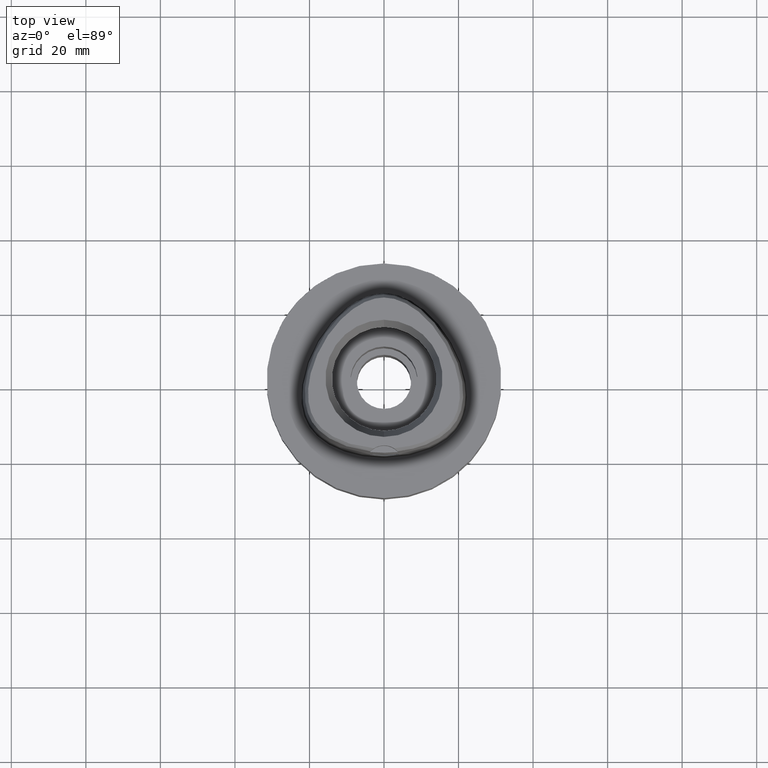
[diagram: clean part render]
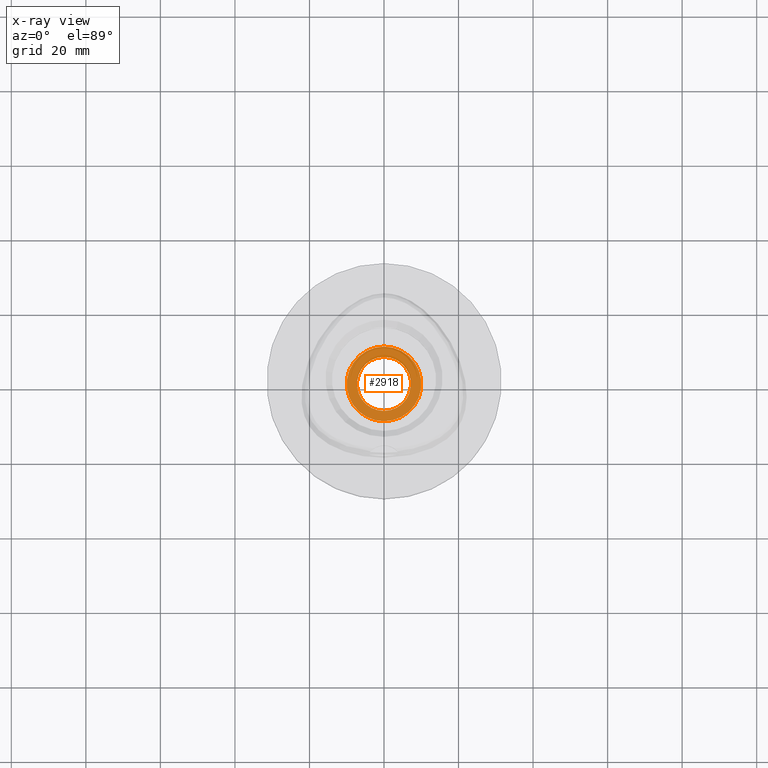
[diagram: x-ray — body ghosted, one internal face saturated and labeled with its STEP entity id]
A machine part, top view, then the same camera in x-ray: the body is ghosted and one INTERNAL B-rep face — a face not visible from any outside direction — is saturated and labeled: STEP entity #2918.
In plain terms, the highlighted planar face has unit normal (0, 0, -1).
Its self-contained STEP definition (entity closure, byte-faithful):
#826=CARTESIAN_POINT('',(0.E0,1.308535104889E-14,-5.E1));
#827=DIRECTION('',(0.E0,0.E0,1.E0));
#828=DIRECTION('',(0.E0,-1.E0,0.E0));
#829=AXIS2_PLACEMENT_3D('',#826,#827,#828);
#834=CARTESIAN_POINT('',(0.E0,1.308535104889E-14,-5.E1));
#835=DIRECTION('',(0.E0,0.E0,1.E0));
#836=DIRECTION('',(0.E0,1.E0,0.E0));
#837=AXIS2_PLACEMENT_3D('',#834,#835,#836);
#842=CARTESIAN_POINT('',(0.E0,1.308535104889E-14,-5.E1));
#843=DIRECTION('',(0.E0,0.E0,-1.E0));
#844=DIRECTION('',(0.E0,-1.E0,0.E0));
#845=AXIS2_PLACEMENT_3D('',#842,#843,#844);
#850=CARTESIAN_POINT('',(0.E0,1.308535104889E-14,-5.E1));
#851=DIRECTION('',(0.E0,0.E0,-1.E0));
#852=DIRECTION('',(0.E0,1.E0,0.E0));
#853=AXIS2_PLACEMENT_3D('',#850,#851,#852);
#1740=CARTESIAN_POINT('',(0.E0,1.E1,-5.E1));
#1741=VERTEX_POINT('',#1740);
#1742=CARTESIAN_POINT('',(0.E0,-1.E1,-5.E1));
#1743=VERTEX_POINT('',#1742);
#1744=CARTESIAN_POINT('',(0.E0,-7.25E0,-5.E1));
#1745=CARTESIAN_POINT('',(0.E0,7.25E0,-5.E1));
#1746=VERTEX_POINT('',#1744);
#1747=VERTEX_POINT('',#1745);
#2903=CARTESIAN_POINT('',(0.E0,0.E0,-5.E1));
#2904=DIRECTION('',(0.E0,0.E0,-1.E0));
#2905=DIRECTION('',(0.E0,-1.E0,0.E0));
#2906=AXIS2_PLACEMENT_3D('',#2903,#2904,#2905);
#2907=PLANE('',#2906);
#2908=ORIENTED_EDGE('',*,*,#2896,.T.);
#2909=ORIENTED_EDGE('',*,*,#2885,.T.);
#2910=EDGE_LOOP('',(#2908,#2909));
#2911=FACE_OUTER_BOUND('',#2910,.F.);
#2913=ORIENTED_EDGE('',*,*,#2912,.T.);
#2915=ORIENTED_EDGE('',*,*,#2914,.T.);
#2916=EDGE_LOOP('',(#2913,#2915));
#2917=FACE_BOUND('',#2916,.F.);
#830=CIRCLE('',#829,1.E1);
#838=CIRCLE('',#837,1.E1);
#846=CIRCLE('',#845,7.25E0);
#854=CIRCLE('',#853,7.25E0);
#2885=EDGE_CURVE('',#1741,#1743,#838,.T.);
#2896=EDGE_CURVE('',#1743,#1741,#830,.T.);
#2912=EDGE_CURVE('',#1746,#1747,#846,.T.);
#2914=EDGE_CURVE('',#1747,#1746,#854,.T.);
#2918=ADVANCED_FACE('',(#2911,#2917),#2907,.T.);